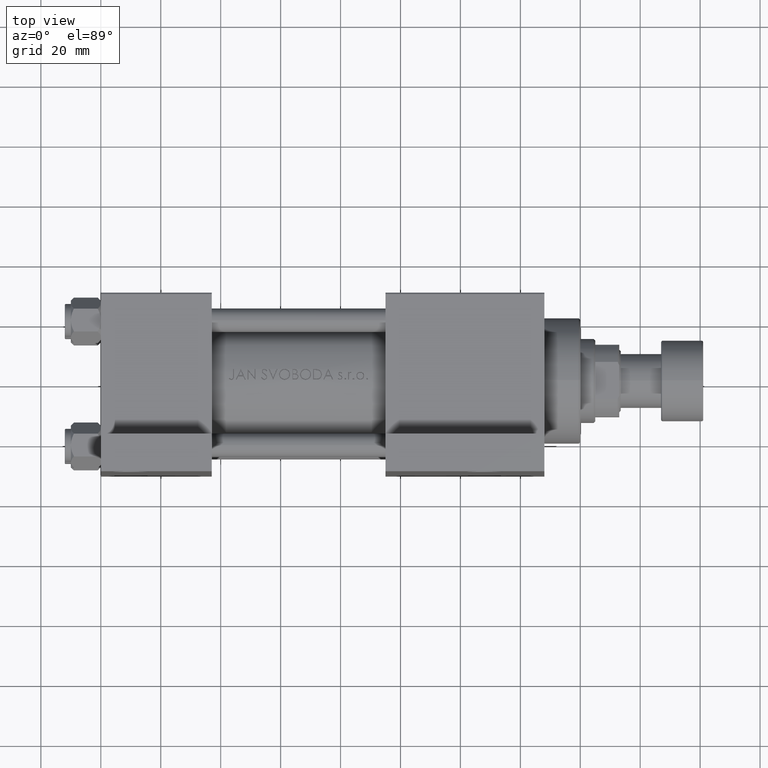
[diagram: clean part render]
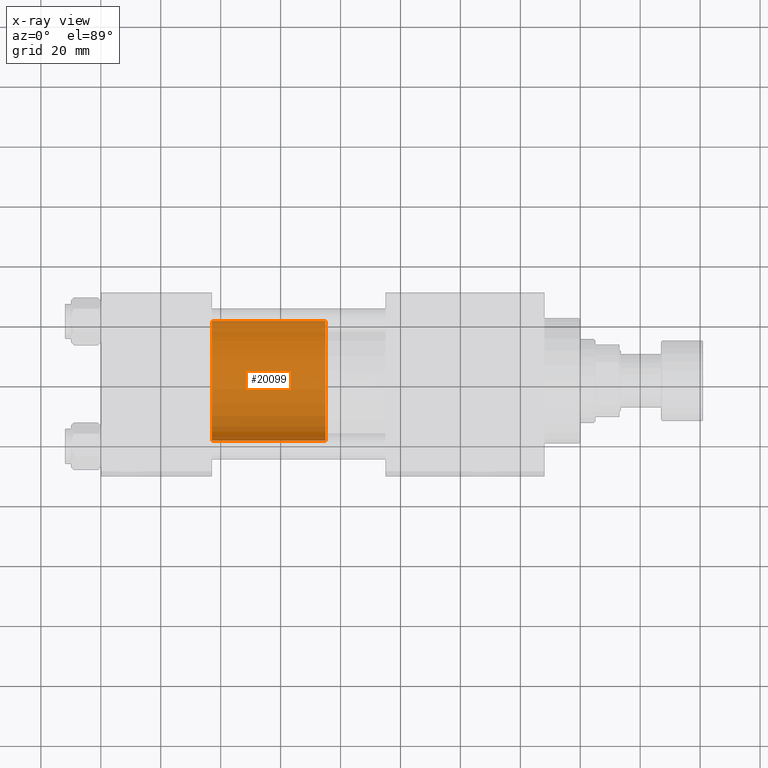
[diagram: x-ray — body ghosted, one internal face saturated and labeled with its STEP entity id]
A machine part, top view, then the same camera in x-ray: the body is ghosted and one INTERNAL B-rep face — a face not visible from any outside direction — is saturated and labeled: STEP entity #20099.
In plain terms, the highlighted cylindrical surface (partial cylindrical patch) has radius 20 mm, axis along (-1, 0, 0).
Its self-contained STEP definition (entity closure, byte-faithful):
#4 = EDGE_CURVE ( 'NONE', #23302, #6875, #4311, .T. ) ;
#2129 = CIRCLE ( 'NONE', #37082, 20.00000000000000000 ) ;
#3261 = DIRECTION ( 'NONE',  ( 1.000000000000000000, 0.000000000000000000, 0.000000000000000000 ) ) ;
#4311 = CIRCLE ( 'NONE', #19822, 20.00000000000000000 ) ;
#4739 = EDGE_CURVE ( 'NONE', #37874, #5960, #2129, .T. ) ;
#5690 = ORIENTED_EDGE ( 'NONE', *, *, #4739, .T. ) ;
#5960 = VERTEX_POINT ( 'NONE', #42966 ) ;
#6832 = CARTESIAN_POINT ( 'NONE',  ( 0.000000000000000000, 0.000000000000000000, 0.000000000000000000 ) ) ;
#6875 = VERTEX_POINT ( 'NONE', #28758 ) ;
#7410 = LINE ( 'NONE', #10834, #7683 ) ;
#7683 = VECTOR ( 'NONE', #26119, 1000.000000000000000 ) ;
#7918 = AXIS2_PLACEMENT_3D ( 'NONE', #15069, #40832, #14595 ) ;
#8641 = EDGE_CURVE ( 'NONE', #23302, #37874, #7410, .T. ) ;
#10487 = CARTESIAN_POINT ( 'NONE',  ( 20.00000000000000000, 2.449293598294706513E-15, 0.000000000000000000 ) ) ;
#10834 = CARTESIAN_POINT ( 'NONE',  ( 20.00000000000000000, 2.449293598294706513E-15, 38.00000000000000000 ) ) ;
#13729 = DIRECTION ( 'NONE',  ( 0.000000000000000000, 0.000000000000000000, 1.000000000000000000 ) ) ;
#14595 = DIRECTION ( 'NONE',  ( -1.000000000000000000, 0.000000000000000000, 0.000000000000000000 ) ) ;
#15069 = CARTESIAN_POINT ( 'NONE',  ( 0.000000000000000000, 0.000000000000000000, 38.00000000000000000 ) ) ;
#19185 = VECTOR ( 'NONE', #35352, 1000.000000000000000 ) ;
#19822 = AXIS2_PLACEMENT_3D ( 'NONE', #36580, #13729, #3261 ) ;
#20099 = ADVANCED_FACE ( 'NONE', ( #44240 ), #29675, .T. ) ;
#20289 = CARTESIAN_POINT ( 'NONE',  ( -20.00000000000000000, 0.000000000000000000, 38.00000000000000000 ) ) ;
#20779 = EDGE_LOOP ( 'NONE', ( #23496, #24576, #5690, #36453 ) ) ;
#20898 = CARTESIAN_POINT ( 'NONE',  ( 20.00000000000000000, 2.449293598294706513E-15, 38.00000000000000000 ) ) ;
#23302 = VERTEX_POINT ( 'NONE', #20898 ) ;
#23496 = ORIENTED_EDGE ( 'NONE', *, *, #4, .F. ) ;
#24576 = ORIENTED_EDGE ( 'NONE', *, *, #8641, .T. ) ;
#26119 = DIRECTION ( 'NONE',  ( -0.000000000000000000, -0.000000000000000000, -1.000000000000000000 ) ) ;
#28758 = CARTESIAN_POINT ( 'NONE',  ( -20.00000000000000000, 0.000000000000000000, 38.00000000000000000 ) ) ;
#29675 = CYLINDRICAL_SURFACE ( 'NONE', #7918, 20.00000000000000000 ) ;
#30978 = LINE ( 'NONE', #20289, #19185 ) ;
#32851 = DIRECTION ( 'NONE',  ( 0.000000000000000000, 0.000000000000000000, 1.000000000000000000 ) ) ;
#33329 = DIRECTION ( 'NONE',  ( 1.000000000000000000, 0.000000000000000000, 0.000000000000000000 ) ) ;
#35352 = DIRECTION ( 'NONE',  ( -0.000000000000000000, -0.000000000000000000, -1.000000000000000000 ) ) ;
#36414 = EDGE_CURVE ( 'NONE', #6875, #5960, #30978, .T. ) ;
#36453 = ORIENTED_EDGE ( 'NONE', *, *, #36414, .F. ) ;
#36580 = CARTESIAN_POINT ( 'NONE',  ( 0.000000000000000000, 0.000000000000000000, 38.00000000000000000 ) ) ;
#37082 = AXIS2_PLACEMENT_3D ( 'NONE', #6832, #32851, #33329 ) ;
#37874 = VERTEX_POINT ( 'NONE', #10487 ) ;
#40832 = DIRECTION ( 'NONE',  ( -0.000000000000000000, -0.000000000000000000, -1.000000000000000000 ) ) ;
#42966 = CARTESIAN_POINT ( 'NONE',  ( -20.00000000000000000, 0.000000000000000000, 0.000000000000000000 ) ) ;
#44240 = FACE_OUTER_BOUND ( 'NONE', #20779, .T. ) ;